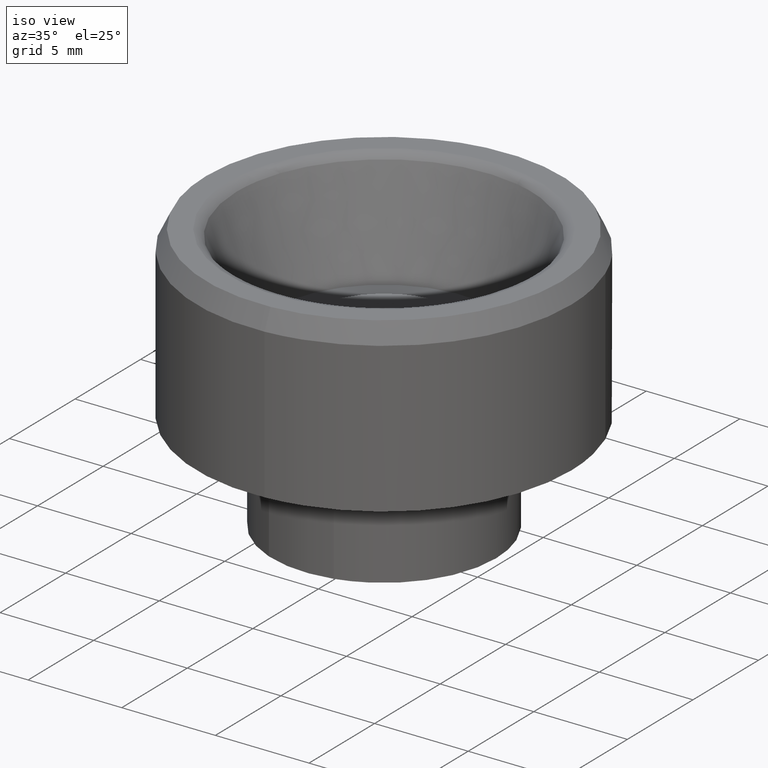
[diagram: clean part render]
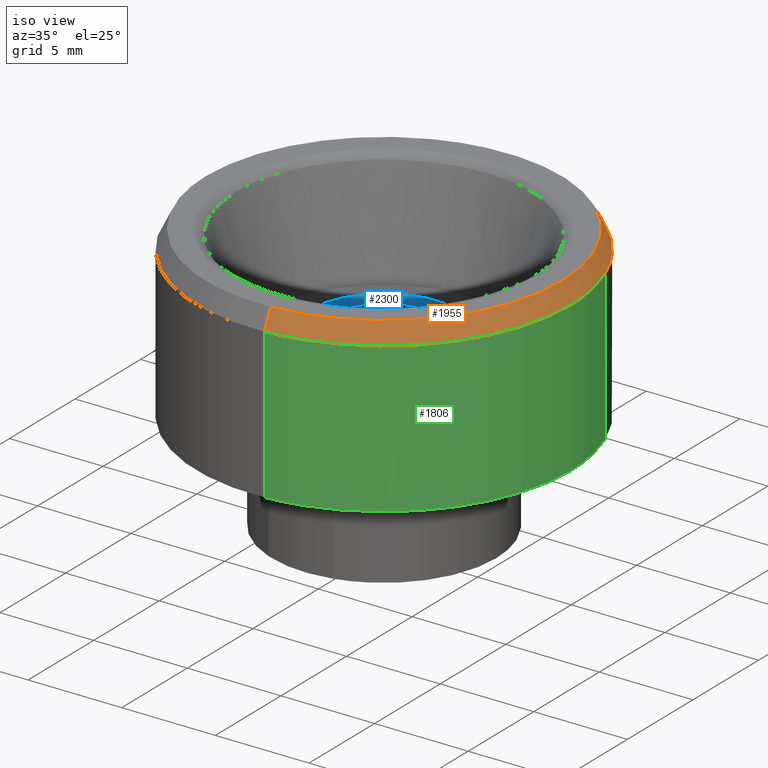
[diagram: same view with three faces highlighted in distinct colors, each labeled with its STEP entity id]
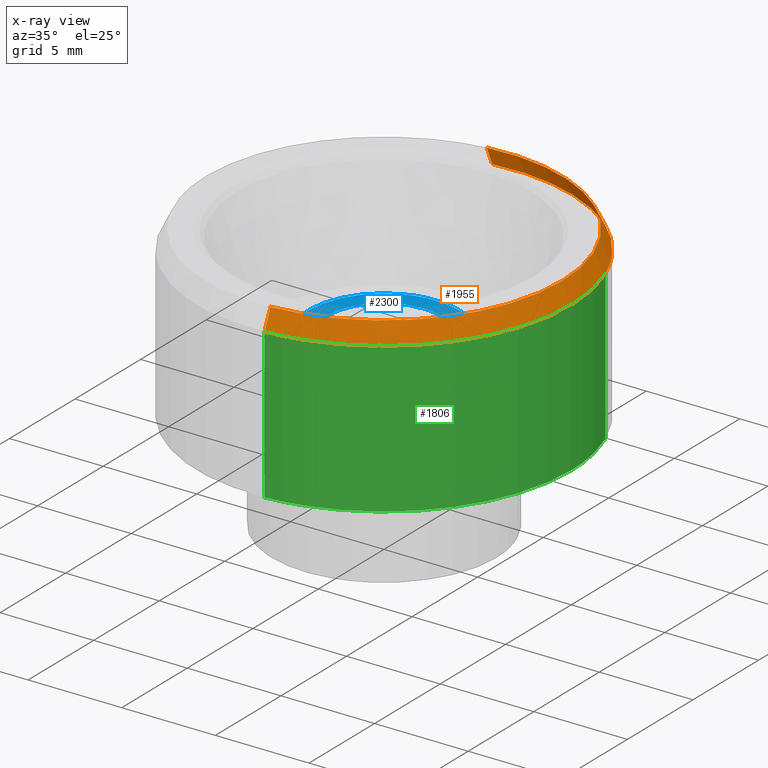
[diagram: x-ray of the same camera — body ghosted, the three highlighted faces saturated]
A machine part, iso view with three faces highlighted in distinct colors.
The next image is the same camera in x-ray (body ghosted, the three faces saturated) — at least one of them is partly hidden behind the body in this view.
Their STEP definitions:

[orange] entity #1955 — the highlighted face is a freeform B-spline surface patch.
#1759=CARTESIAN_POINT('',(9.361437409540869,3.516175426116772,14.000000000000011));
#1760=VERTEX_POINT('',#1759);
#1761=CARTESIAN_POINT('',(10.0,0.0,14.0));
#1762=VERTEX_POINT('',#1761);
#1763=CARTESIAN_POINT('',(9.361437409540869,3.516175426116772,14.000000000000014));
#1764=CARTESIAN_POINT('',(10.0,1.816071478445229,13.999999999999996));
#1765=CARTESIAN_POINT('',(10.0,0.0,14.0));
#1773=(BOUNDED_CURVE()B_SPLINE_CURVE(2,(#1763,#1764,#1765),.UNSPECIFIED.,.F.,.U.)B_SPLINE_CURVE_WITH_KNOTS((3,3),(0.440284243750536,0.500000000000000),.UNSPECIFIED.)CURVE()GEOMETRIC_REPRESENTATION_ITEM()RATIONAL_B_SPLINE_CURVE((0.893499643788913,0.930038639752860,1.0))REPRESENTATION_ITEM(''));
#1774=EDGE_CURVE('',#1760,#1762,#1773,.T.);
#1776=CARTESIAN_POINT('',(0.610485173869379,-9.981347883809157,14.000000454971101));
#1777=VERTEX_POINT('',#1776);
#1778=CARTESIAN_POINT('',(10.0,0.0,14.0));
#1779=CARTESIAN_POINT('',(10.0,-9.407061479335608,14.000000000000005));
#1780=CARTESIAN_POINT('',(0.610485173869379,-9.981347883809157,14.000000454971104));
#1788=(BOUNDED_CURVE()B_SPLINE_CURVE(2,(#1778,#1779,#1780),.UNSPECIFIED.,.F.,.U.)B_SPLINE_CURVE_WITH_KNOTS((3,3),(0.500000000000000,0.739332977076592),.UNSPECIFIED.)CURVE()GEOMETRIC_REPRESENTATION_ITEM()RATIONAL_B_SPLINE_CURVE((1.0,0.719603975903323,0.976072073466626))REPRESENTATION_ITEM(''));
#1789=EDGE_CURVE('',#1762,#1777,#1788,.T.);
#1829=CARTESIAN_POINT('',(-1.180342346569118,9.930095263636622,13.999999999999719));
#1830=VERTEX_POINT('',#1829);
#1831=CARTESIAN_POINT('',(-1.180342346569118,9.930095263636622,13.999999999999723));
#1832=CARTESIAN_POINT('',(-0.592241196520633,10.0,14.000000000000004));
#1833=CARTESIAN_POINT('',(0.0,10.0,14.0));
#1834=CARTESIAN_POINT('',(6.926099369391782,10.0,13.999999999999996));
#1835=CARTESIAN_POINT('',(9.361437409540869,3.516175426116772,14.000000000000014));
#1843=(BOUNDED_CURVE()B_SPLINE_CURVE(2,(#1831,#1832,#1833,#1834,#1835),.UNSPECIFIED.,.F.,.U.)B_SPLINE_CURVE_WITH_KNOTS((3,2,3),(0.229562473515593,0.250000000000000,0.440284243750536),.UNSPECIFIED.)CURVE()GEOMETRIC_REPRESENTATION_ITEM()RATIONAL_B_SPLINE_CURVE((0.956026754187785,0.976055948333587,1.0,0.777068141433688,0.893499643788913))REPRESENTATION_ITEM(''));
#1844=EDGE_CURVE('',#1830,#1760,#1843,.T.);
#1884=CARTESIAN_POINT('',(-1.119849801305996,9.421177881375284,15.025000000000002));
#1885=CARTESIAN_POINT('',(-0.850219737952813,9.453227501568644,15.025000000000004));
#1886=CARTESIAN_POINT('',(-0.579198018836956,9.469803900027459,15.025000000000000));
#1887=CARTESIAN_POINT('',(8.890605881190504,10.049001918864416,15.025000000000004));
#1888=CARTESIAN_POINT('',(9.469803900027459,0.579198018836956,15.025000000000000));
#1889=CARTESIAN_POINT('',(10.049001918864416,-8.890605881190504,15.025000000000004));
#1890=CARTESIAN_POINT('',(0.579198018836956,-9.469803900027459,15.025000000000000));
#1891=CARTESIAN_POINT('',(-1.181854660199125,9.942818198193198,13.974375000000000));
#1892=CARTESIAN_POINT('',(-0.897295475090451,9.976642370808991,13.974375000000000));
#1893=CARTESIAN_POINT('',(-0.611267579761360,9.994136586323448,13.974375000000000));
#1894=CARTESIAN_POINT('',(9.382869006562087,10.605404166084806,13.974374999999998));
#1895=CARTESIAN_POINT('',(9.994136586323448,0.611267579761360,13.974375000000000));
#1896=CARTESIAN_POINT('',(10.605404166084806,-9.382869006562087,13.974374999999998));
#1897=CARTESIAN_POINT('',(0.611267579761360,-9.994136586323448,13.974375000000000));
#1905=(BOUNDED_SURFACE()B_SPLINE_SURFACE(2,1,((#1884,#1891),(#1885,#1892),(#1886,#1893),(#1887,#1894),(#1888,#1895),(#1889,#1896),(#1890,#1897)),.UNSPECIFIED.,.F.,.F.,.U.)B_SPLINE_SURFACE_WITH_KNOTS((3,2,2,3),(2,2),(0.0,0.663590837599818,17.253361777595241,33.843132717590663),(0.0,1.0),.UNSPECIFIED.)GEOMETRIC_REPRESENTATION_ITEM()RATIONAL_B_SPLINE_SURFACE(((0.977505800795127,0.977505800795127),(0.988284271247462,0.988284271247462),(1.0,1.0),(0.707106781186548,0.707106781186548),(1.0,1.0),(0.707106781186548,0.707106781186548),(1.0,1.0)))REPRESENTATION_ITEM('')SURFACE());
#1906=ORIENTED_EDGE('',*,*,#1844,.F.);
#1907=CARTESIAN_POINT('',(-1.121325229249212,9.433590500454557,14.999999999998179));
#1908=VERTEX_POINT('',#1907);
#1909=CARTESIAN_POINT('',(-1.121325229249212,9.433590500454557,14.999999999998179));
#1910=CARTESIAN_POINT('',(-1.180342346569118,9.930095263636622,13.999999999999719));
#1911=QUASI_UNIFORM_CURVE('',1,(#1909,#1910),.UNSPECIFIED.,.F.,.U.);
#1912=EDGE_CURVE('',#1908,#1830,#1911,.T.);
#1913=ORIENTED_EDGE('',*,*,#1912,.F.);
#1914=CARTESIAN_POINT('',(9.500000000000000,0.0,15.0));
#1915=VERTEX_POINT('',#1914);
#1916=CARTESIAN_POINT('',(-1.121325229249212,9.433590500454557,14.999999999998183));
#1917=CARTESIAN_POINT('',(-0.562629136703150,9.500000000000000,15.000000000000002));
#1918=CARTESIAN_POINT('',(0.0,9.500000000000000,15.0));
#1919=CARTESIAN_POINT('',(9.500000000000000,9.500000000000000,14.999999999999995));
#1920=CARTESIAN_POINT('',(9.500000000000000,0.0,15.0));
#1928=(BOUNDED_CURVE()B_SPLINE_CURVE(2,(#1916,#1917,#1918,#1919,#1920),.UNSPECIFIED.,.F.,.U.)B_SPLINE_CURVE_WITH_KNOTS((3,2,3),(0.229562473515289,0.250000000000000,0.500000000000000),.UNSPECIFIED.)CURVE()GEOMETRIC_REPRESENTATION_ITEM()RATIONAL_B_SPLINE_CURVE((0.956026754187191,0.976055948333232,1.0,0.707106781186548,1.0))REPRESENTATION_ITEM(''));
#1929=EDGE_CURVE('',#1908,#1915,#1928,.T.);
#1930=ORIENTED_EDGE('',*,*,#1929,.T.);
#1931=CARTESIAN_POINT('',(0.579961125587577,-9.482280585007928,14.999999999998829));
#1932=VERTEX_POINT('',#1931);
#1933=CARTESIAN_POINT('',(9.500000000000000,0.0,15.0));
#1934=CARTESIAN_POINT('',(9.499999999999998,-8.936707635592056,15.000000000000005));
#1935=CARTESIAN_POINT('',(0.579961125587577,-9.482280585007928,14.999999999998829));
#1943=(BOUNDED_CURVE()B_SPLINE_CURVE(2,(#1933,#1934,#1935),.UNSPECIFIED.,.F.,.U.)B_SPLINE_CURVE_WITH_KNOTS((3,3),(0.500000000000000,0.739332962241736),.UNSPECIFIED.)CURVE()GEOMETRIC_REPRESENTATION_ITEM()RATIONAL_B_SPLINE_CURVE((1.0,0.719603993283438,0.976072041672704))REPRESENTATION_ITEM(''));
#1944=EDGE_CURVE('',#1915,#1932,#1943,.T.);
#1945=ORIENTED_EDGE('',*,*,#1944,.T.);
#1946=CARTESIAN_POINT('',(0.579961125587577,-9.482280585007928,14.999999999998829));
#1947=CARTESIAN_POINT('',(0.610485173869379,-9.981347883809157,14.000000454971101));
#1948=QUASI_UNIFORM_CURVE('',1,(#1946,#1947),.UNSPECIFIED.,.F.,.U.);
#1949=EDGE_CURVE('',#1932,#1777,#1948,.T.);
#1950=ORIENTED_EDGE('',*,*,#1949,.T.);
#1951=ORIENTED_EDGE('',*,*,#1789,.F.);
#1952=ORIENTED_EDGE('',*,*,#1774,.F.);
#1953=EDGE_LOOP('',(#1906,#1913,#1930,#1945,#1950,#1951,#1952));
#1954=FACE_OUTER_BOUND('',#1953,.T.);
#1955=ADVANCED_FACE('',(#1954),#1905,.T.);

[blue] entity #2300 — the highlighted face is a freeform B-spline surface patch.
#754=CARTESIAN_POINT('',(-0.472130683768250,3.972038848929457,10.0));
#755=VERTEX_POINT('',#754);
#761=CARTESIAN_POINT('',(4.0,0.0,10.0));
#762=VERTEX_POINT('',#761);
#763=CARTESIAN_POINT('',(-0.472130683768250,3.972038848929457,10.000000000000002));
#764=CARTESIAN_POINT('',(-0.236893318116203,4.000000000000001,10.0));
#765=CARTESIAN_POINT('',(0.0,4.0,10.0));
#766=CARTESIAN_POINT('',(4.000000000000000,4.000000000000000,10.000000000000002));
#767=CARTESIAN_POINT('',(4.0,0.0,10.0));
#775=(BOUNDED_CURVE()B_SPLINE_CURVE(2,(#763,#764,#765,#766,#767),.UNSPECIFIED.,.F.,.U.)B_SPLINE_CURVE_WITH_KNOTS((3,2,3),(0.229562739648931,0.250000000000000,0.500000000000000),.UNSPECIFIED.)CURVE()GEOMETRIC_REPRESENTATION_ITEM()RATIONAL_B_SPLINE_CURVE((0.956027275820682,0.976056260128187,1.0,0.707106781186548,1.0))REPRESENTATION_ITEM(''));
#776=EDGE_CURVE('',#755,#762,#775,.T.);
#778=CARTESIAN_POINT('',(0.244192929751929,-3.992539268818486,10.0));
#779=VERTEX_POINT('',#778);
#780=CARTESIAN_POINT('',(4.0,0.0,10.0));
#781=CARTESIAN_POINT('',(4.0,-3.762825427497263,10.0));
#782=CARTESIAN_POINT('',(0.244192929751929,-3.992539268818486,10.0));
#790=(BOUNDED_CURVE()B_SPLINE_CURVE(2,(#780,#781,#782),.UNSPECIFIED.,.F.,.U.)B_SPLINE_CURVE_WITH_KNOTS((3,3),(0.500000000000000,0.739333015329569),.UNSPECIFIED.)CURVE()GEOMETRIC_REPRESENTATION_ITEM()RATIONAL_B_SPLINE_CURVE((1.0,0.719603931087172,0.976072155450063))REPRESENTATION_ITEM(''));
#791=EDGE_CURVE('',#762,#779,#790,.T.);
#869=CARTESIAN_POINT('',(-4.0,0.0,10.0));
#870=VERTEX_POINT('',#869);
#871=CARTESIAN_POINT('',(0.244192929751929,-3.992539268818486,10.0));
#872=CARTESIAN_POINT('',(0.122210437278481,-4.000000000000000,10.0));
#873=CARTESIAN_POINT('',(0.0,-4.0,10.0));
#874=CARTESIAN_POINT('',(-4.000000000000000,-4.000000000000000,10.000000000000002));
#875=CARTESIAN_POINT('',(-4.0,0.0,10.0));
#883=(BOUNDED_CURVE()B_SPLINE_CURVE(2,(#871,#872,#873,#874,#875),.UNSPECIFIED.,.F.,.U.)B_SPLINE_CURVE_WITH_KNOTS((3,2,3),(0.739333015329569,0.750000000000000,1.0),.UNSPECIFIED.)CURVE()GEOMETRIC_REPRESENTATION_ITEM()RATIONAL_B_SPLINE_CURVE((0.976072155450063,0.987502850099375,1.0,0.707106781186548,1.0))REPRESENTATION_ITEM(''));
#884=EDGE_CURVE('',#779,#870,#883,.T.);
#886=CARTESIAN_POINT('',(-4.0,0.0,10.0));
#887=CARTESIAN_POINT('',(-4.000000000000001,3.552703737706513,10.0));
#888=CARTESIAN_POINT('',(-0.472130683768250,3.972038848929457,10.000000000000002));
#896=(BOUNDED_CURVE()B_SPLINE_CURVE(2,(#886,#887,#888),.UNSPECIFIED.,.F.,.U.)B_SPLINE_CURVE_WITH_KNOTS((3,3),(0.0,0.229562739648931),.UNSPECIFIED.)CURVE()GEOMETRIC_REPRESENTATION_ITEM()RATIONAL_B_SPLINE_CURVE((1.0,0.731050521058361,0.956027275820682))REPRESENTATION_ITEM(''));
#897=EDGE_CURVE('',#870,#755,#896,.T.);
#925=CARTESIAN_POINT('',(-3.0,0.0,10.0));
#926=VERTEX_POINT('',#925);
#927=CARTESIAN_POINT('',(-0.372379754437359,-2.976799173351607,9.999999999999993));
#928=VERTEX_POINT('',#927);
#929=CARTESIAN_POINT('',(-3.0,0.0,10.0));
#930=CARTESIAN_POINT('',(-3.000000000000000,-2.648099612243360,10.0));
#931=CARTESIAN_POINT('',(-0.372379754437359,-2.976799173351608,9.999999999999993));
#939=(BOUNDED_CURVE()B_SPLINE_CURVE(2,(#929,#930,#931),.UNSPECIFIED.,.F.,.U.)B_SPLINE_CURVE_WITH_KNOTS((3,3),(0.0,0.228526311908594),.UNSPECIFIED.)CURVE()GEOMETRIC_REPRESENTATION_ITEM()RATIONAL_B_SPLINE_CURVE((1.0,0.732264771686099,0.954005897728848))REPRESENTATION_ITEM(''));
#940=EDGE_CURVE('',#926,#928,#939,.T.);
#981=CARTESIAN_POINT('',(0.026176174883800,2.999885799135806,10.000000000000011));
#982=VERTEX_POINT('',#981);
#988=CARTESIAN_POINT('',(0.026176174883800,2.999885799135806,10.000000000000011));
#989=CARTESIAN_POINT('',(0.013088336558461,3.0,10.0));
#990=CARTESIAN_POINT('',(0.0,3.0,10.0));
#991=CARTESIAN_POINT('',(-3.0,3.0,10.000000000000002));
#992=CARTESIAN_POINT('',(-3.0,0.0,10.0));
#1000=(BOUNDED_CURVE()B_SPLINE_CURVE(2,(#988,#989,#990,#991,#992),.UNSPECIFIED.,.F.,.U.)B_SPLINE_CURVE_WITH_KNOTS((3,2,3),(0.748460307157249,0.750000000000000,1.0),.UNSPECIFIED.)CURVE()GEOMETRIC_REPRESENTATION_ITEM()RATIONAL_B_SPLINE_CURVE((0.996414494410273,0.998196137629210,1.0,0.707106781186548,1.0))REPRESENTATION_ITEM(''));
#1001=EDGE_CURVE('',#982,#926,#1000,.T.);
#1028=CARTESIAN_POINT('',(3.0,0.0,10.0));
#1029=VERTEX_POINT('',#1028);
#1030=CARTESIAN_POINT('',(-0.372379754437359,-2.976799173351608,9.999999999999993));
#1031=CARTESIAN_POINT('',(-0.186912631813625,-3.000000000000000,10.0));
#1032=CARTESIAN_POINT('',(0.0,-3.0,10.0));
#1033=CARTESIAN_POINT('',(3.0,-3.0,10.000000000000002));
#1034=CARTESIAN_POINT('',(3.0,0.0,10.0));
#1042=(BOUNDED_CURVE()B_SPLINE_CURVE(2,(#1030,#1031,#1032,#1033,#1034),.UNSPECIFIED.,.F.,.U.)B_SPLINE_CURVE_WITH_KNOTS((3,2,3),(0.228526311908594,0.250000000000000,0.500000000000000),.UNSPECIFIED.)CURVE()GEOMETRIC_REPRESENTATION_ITEM()RATIONAL_B_SPLINE_CURVE((0.954005897728848,0.974842009500449,1.0,0.707106781186548,1.0))REPRESENTATION_ITEM(''));
#1043=EDGE_CURVE('',#928,#1029,#1042,.T.);
#1045=CARTESIAN_POINT('',(3.0,0.0,10.0));
#1046=CARTESIAN_POINT('',(3.000000000000000,2.973937033840680,10.0));
#1047=CARTESIAN_POINT('',(0.026176174883800,2.999885799135806,10.000000000000011));
#1055=(BOUNDED_CURVE()B_SPLINE_CURVE(2,(#1045,#1046,#1047),.UNSPECIFIED.,.F.,.U.)B_SPLINE_CURVE_WITH_KNOTS((3,3),(0.500000000000000,0.748460307157249),.UNSPECIFIED.)CURVE()GEOMETRIC_REPRESENTATION_ITEM()RATIONAL_B_SPLINE_CURVE((1.0,0.708910643557338,0.996414494410273))REPRESENTATION_ITEM(''));
#1056=EDGE_CURVE('',#1029,#982,#1055,.T.);
#2283=CARTESIAN_POINT('',(4.399599984494448,-4.399502853344667,10.0));
#2284=CARTESIAN_POINT('',(-4.399600199071169,-4.399502853344667,10.0));
#2285=CARTESIAN_POINT('',(4.399599984494448,4.399527243565310,10.0));
#2286=CARTESIAN_POINT('',(-4.399600199071169,4.399527243565310,10.0));
#2287=B_SPLINE_SURFACE_WITH_KNOTS('',1,1,((#2283,#2285),(#2284,#2286)),.UNSPECIFIED.,.F.,.F.,.U.,(2,2),(2,2),(0.0,8.799200183565617),(0.0,8.799030096909977),.UNSPECIFIED.);
#2288=ORIENTED_EDGE('',*,*,#884,.F.);
#2289=ORIENTED_EDGE('',*,*,#791,.F.);
#2290=ORIENTED_EDGE('',*,*,#776,.F.);
#2291=ORIENTED_EDGE('',*,*,#897,.F.);
#2292=EDGE_LOOP('',(#2288,#2289,#2290,#2291));
#2293=FACE_OUTER_BOUND('',#2292,.T.);
#2294=ORIENTED_EDGE('',*,*,#1056,.F.);
#2295=ORIENTED_EDGE('',*,*,#1043,.F.);
#2296=ORIENTED_EDGE('',*,*,#940,.F.);
#2297=ORIENTED_EDGE('',*,*,#1001,.F.);
#2298=EDGE_LOOP('',(#2294,#2295,#2296,#2297));
#2299=FACE_BOUND('',#2298,.T.);
#2300=ADVANCED_FACE('',(#2293,#2299),#2287,.F.);

[green] entity #1806 — the highlighted face is a freeform B-spline surface patch.
#1603=CARTESIAN_POINT('',(2.503800040548209,-9.681476403780566,6.000000000000149));
#1604=VERTEX_POINT('',#1603);
#1610=CARTESIAN_POINT('',(0.610484965659253,-9.981348010499573,6.000000000000002));
#1611=VERTEX_POINT('',#1610);
#1612=CARTESIAN_POINT('',(2.503800040548209,-9.681476403780566,6.000000000000149));
#1613=CARTESIAN_POINT('',(1.571579471836940,-9.922565035347835,6.000000000000001));
#1614=CARTESIAN_POINT('',(0.610484965659253,-9.981348010499573,6.000000000000002));
#1622=(BOUNDED_CURVE()B_SPLINE_CURVE(2,(#1612,#1613,#1614),.UNSPECIFIED.,.F.,.U.)B_SPLINE_CURVE_WITH_KNOTS((3,3),(0.707273770289455,0.739332977097981),.UNSPECIFIED.)CURVE()GEOMETRIC_REPRESENTATION_ITEM()RATIONAL_B_SPLINE_CURVE((0.916996154476500,0.941717577606631,0.976072073512466))REPRESENTATION_ITEM(''));
#1623=EDGE_CURVE('',#1604,#1611,#1622,.T.);
#1661=CARTESIAN_POINT('',(9.361437562104159,3.516175019932858,6.000000000000001));
#1662=VERTEX_POINT('',#1661);
#1678=CARTESIAN_POINT('',(10.0,0.0,6.0));
#1679=VERTEX_POINT('',#1678);
#1680=CARTESIAN_POINT('',(9.361437562104161,3.516175019932858,6.000000000000001));
#1681=CARTESIAN_POINT('',(9.999999999999998,1.816071254344898,6.0));
#1682=CARTESIAN_POINT('',(10.0,0.0,6.0));
#1690=(BOUNDED_CURVE()B_SPLINE_CURVE(2,(#1680,#1681,#1682),.UNSPECIFIED.,.F.,.U.)B_SPLINE_CURVE_WITH_KNOTS((3,3),(0.440284250603832,0.500000000000000),.UNSPECIFIED.)CURVE()GEOMETRIC_REPRESENTATION_ITEM()RATIONAL_B_SPLINE_CURVE((0.893499652175730,0.930038647781995,1.0))REPRESENTATION_ITEM(''));
#1691=EDGE_CURVE('',#1662,#1679,#1690,.T.);
#1693=CARTESIAN_POINT('',(10.0,0.0,6.0));
#1694=CARTESIAN_POINT('',(10.0,-7.742827278411905,6.0));
#1695=CARTESIAN_POINT('',(2.503800040548210,-9.681476403780566,6.000000000000149));
#1703=(BOUNDED_CURVE()B_SPLINE_CURVE(2,(#1693,#1694,#1695),.UNSPECIFIED.,.F.,.U.)B_SPLINE_CURVE_WITH_KNOTS((3,3),(0.500000000000000,0.707273770289456),.UNSPECIFIED.)CURVE()GEOMETRIC_REPRESENTATION_ITEM()RATIONAL_B_SPLINE_CURVE((1.0,0.757163672977285,0.916996154476501))REPRESENTATION_ITEM(''));
#1704=EDGE_CURVE('',#1679,#1604,#1703,.T.);
#1741=CARTESIAN_POINT('',(9.361435787766570,3.516179743915722,14.200000000000010));
#1742=CARTESIAN_POINT('',(9.889640193651504,2.109894517154083,14.200000000000006));
#1743=CARTESIAN_POINT('',(9.981347984218667,0.610485395348570,14.199999999999999));
#1744=CARTESIAN_POINT('',(10.591833379567237,-9.370862588870097,14.200000000000006));
#1745=CARTESIAN_POINT('',(0.610485395348570,-9.981347984218667,14.199999999999999));
#1746=CARTESIAN_POINT('',(9.361435787766570,3.516179743915722,5.795000000000001));
#1747=CARTESIAN_POINT('',(9.889640193651504,2.109894517154083,5.795000000000000));
#1748=CARTESIAN_POINT('',(9.981347984218667,0.610485395348570,5.795000000000000));
#1749=CARTESIAN_POINT('',(10.591833379567237,-9.370862588870097,5.795000000000000));
#1750=CARTESIAN_POINT('',(0.610485395348570,-9.981347984218667,5.795000000000000));
#1758=(BOUNDED_SURFACE()B_SPLINE_SURFACE(2,1,((#1741,#1746),(#1742,#1747),(#1743,#1748),(#1744,#1749),(#1745,#1750)),.UNSPECIFIED.,.F.,.F.,.U.)B_SPLINE_SURFACE_WITH_KNOTS((3,2,3),(2,2),(0.0,3.313708498984759,19.882250993908560),(0.0,8.405000000000005),.UNSPECIFIED.)GEOMETRIC_REPRESENTATION_ITEM()RATIONAL_B_SPLINE_SURFACE(((0.906274169979695,0.906274169979695),(0.941421356237309,0.941421356237309),(1.0,1.0),(0.707106781186548,0.707106781186548),(1.0,1.0)))REPRESENTATION_ITEM('')SURFACE());
#1759=CARTESIAN_POINT('',(9.361437409540869,3.516175426116772,14.000000000000011));
#1760=VERTEX_POINT('',#1759);
#1761=CARTESIAN_POINT('',(10.0,0.0,14.0));
#1762=VERTEX_POINT('',#1761);
#1763=CARTESIAN_POINT('',(9.361437409540869,3.516175426116772,14.000000000000014));
#1764=CARTESIAN_POINT('',(10.0,1.816071478445229,13.999999999999996));
#1765=CARTESIAN_POINT('',(10.0,0.0,14.0));
#1773=(BOUNDED_CURVE()B_SPLINE_CURVE(2,(#1763,#1764,#1765),.UNSPECIFIED.,.F.,.U.)B_SPLINE_CURVE_WITH_KNOTS((3,3),(0.440284243750536,0.500000000000000),.UNSPECIFIED.)CURVE()GEOMETRIC_REPRESENTATION_ITEM()RATIONAL_B_SPLINE_CURVE((0.893499643788913,0.930038639752860,1.0))REPRESENTATION_ITEM(''));
#1774=EDGE_CURVE('',#1760,#1762,#1773,.T.);
#1775=ORIENTED_EDGE('',*,*,#1774,.T.);
#1776=CARTESIAN_POINT('',(0.610485173869379,-9.981347883809157,14.000000454971101));
#1777=VERTEX_POINT('',#1776);
#1778=CARTESIAN_POINT('',(10.0,0.0,14.0));
#1779=CARTESIAN_POINT('',(10.0,-9.407061479335608,14.000000000000005));
#1780=CARTESIAN_POINT('',(0.610485173869379,-9.981347883809157,14.000000454971104));
#1788=(BOUNDED_CURVE()B_SPLINE_CURVE(2,(#1778,#1779,#1780),.UNSPECIFIED.,.F.,.U.)B_SPLINE_CURVE_WITH_KNOTS((3,3),(0.500000000000000,0.739332977076592),.UNSPECIFIED.)CURVE()GEOMETRIC_REPRESENTATION_ITEM()RATIONAL_B_SPLINE_CURVE((1.0,0.719603975903323,0.976072073466626))REPRESENTATION_ITEM(''));
#1789=EDGE_CURVE('',#1762,#1777,#1788,.T.);
#1790=ORIENTED_EDGE('',*,*,#1789,.T.);
#1791=CARTESIAN_POINT('',(0.610485173869379,-9.981347883809157,14.000000454971101));
#1792=CARTESIAN_POINT('',(0.610484965659253,-9.981348010499573,6.000000000000002));
#1793=QUASI_UNIFORM_CURVE('',1,(#1791,#1792),.UNSPECIFIED.,.F.,.U.);
#1794=EDGE_CURVE('',#1777,#1611,#1793,.T.);
#1795=ORIENTED_EDGE('',*,*,#1794,.T.);
#1796=ORIENTED_EDGE('',*,*,#1623,.F.);
#1797=ORIENTED_EDGE('',*,*,#1704,.F.);
#1798=ORIENTED_EDGE('',*,*,#1691,.F.);
#1799=CARTESIAN_POINT('',(9.361437409540869,3.516175426116772,14.000000000000011));
#1800=CARTESIAN_POINT('',(9.361437562104159,3.516175019932858,6.000000000000001));
#1801=QUASI_UNIFORM_CURVE('',1,(#1799,#1800),.UNSPECIFIED.,.F.,.U.);
#1802=EDGE_CURVE('',#1760,#1662,#1801,.T.);
#1803=ORIENTED_EDGE('',*,*,#1802,.F.);
#1804=EDGE_LOOP('',(#1775,#1790,#1795,#1796,#1797,#1798,#1803));
#1805=FACE_OUTER_BOUND('',#1804,.T.);
#1806=ADVANCED_FACE('',(#1805),#1758,.T.);